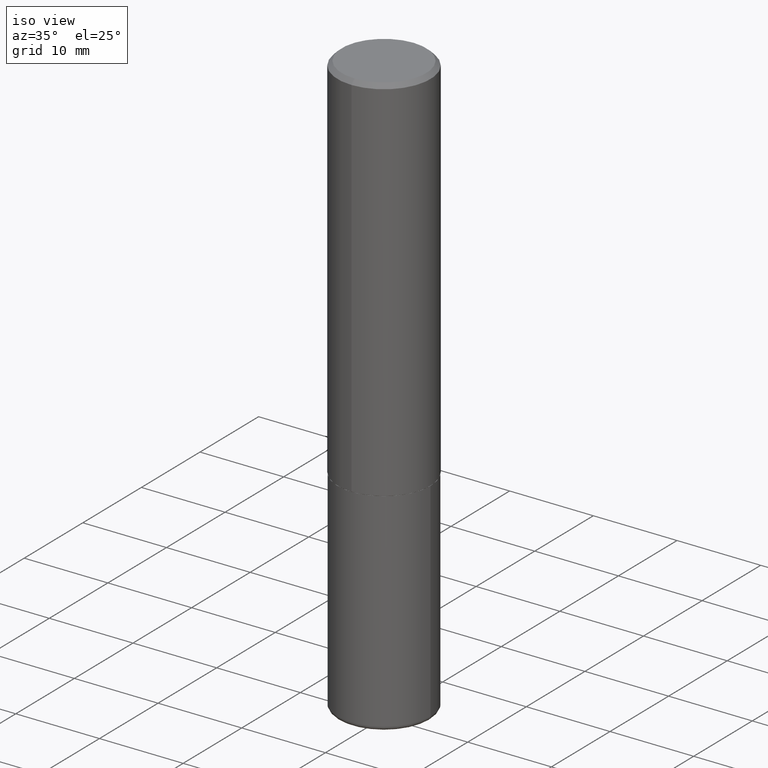
[diagram: clean part render]
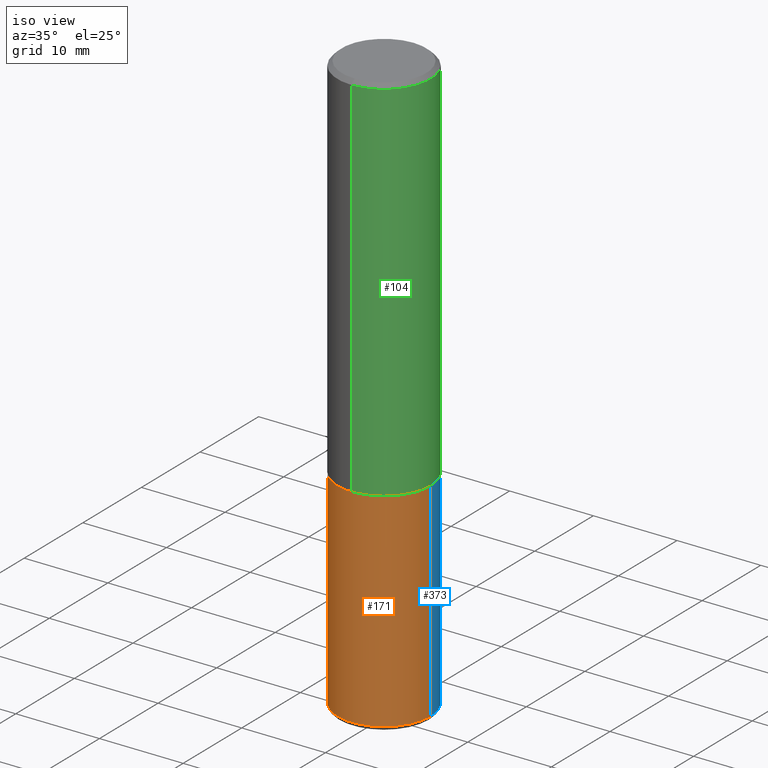
[diagram: same view with three faces highlighted in distinct colors, each labeled with its STEP entity id]
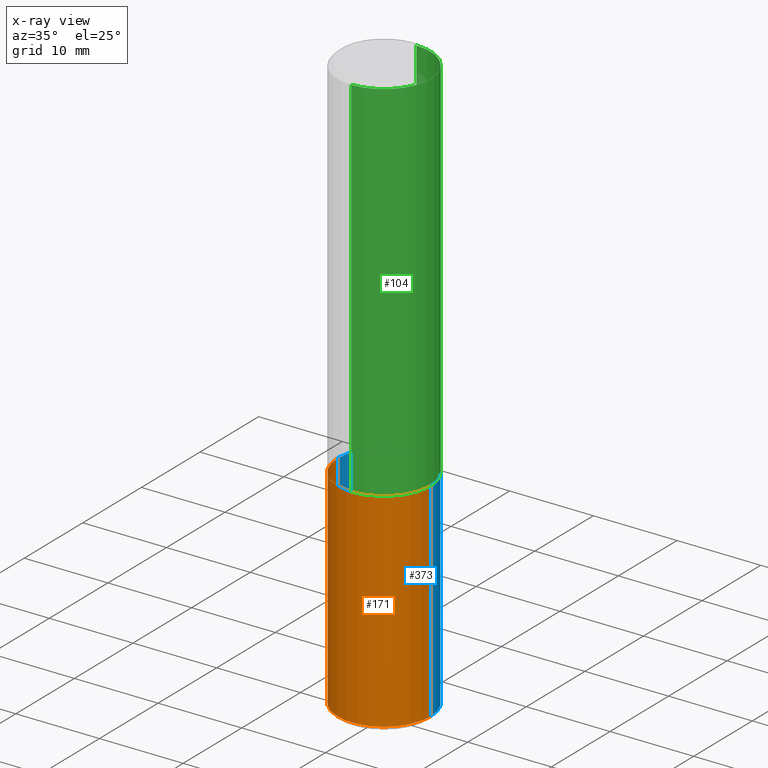
[diagram: x-ray of the same camera — body ghosted, the three highlighted faces saturated]
A machine part, iso view with three faces highlighted in distinct colors.
The next image is the same camera in x-ray (body ghosted, the three faces saturated) — at least one of them is partly hidden behind the body in this view.
Their STEP definitions:

[orange] entity #171 — the highlighted cylindrical surface (partial cylindrical patch) has radius 5.5562 mm, axis along (-0, 0, 1).
#7 = CARTESIAN_POINT ( 'NONE',  ( 4.279570410823988484E-29, -6.110092342975504671E-15, -1.750000000000000000 ) ) ;
#21 = EDGE_CURVE ( 'NONE', #239, #180, #110, .T. ) ;
#31 = DIRECTION ( 'NONE',  ( -2.445468806185136877E-29, 3.491481338843145188E-15, 1.000000000000000000 ) ) ;
#35 = AXIS2_PLACEMENT_3D ( 'NONE', #7, #101, #187 ) ;
#71 = CARTESIAN_POINT ( 'NONE',  ( 0.2187500000000000000, -1.527523085743870843E-15, 1.066663669705360885E-29 ) ) ;
#88 = CIRCLE ( 'NONE', #281, 0.2187500000000000000 ) ;
#101 = DIRECTION ( 'NONE',  ( -2.445468806185136597E-29, 3.491481338843145583E-15, 1.000000000000000000 ) ) ;
#110 = LINE ( 'NONE', #205, #238 ) ;
#115 = VECTOR ( 'NONE', #31, 39.37007874015748143 ) ;
#136 = VERTEX_POINT ( 'NONE', #382 ) ;
#155 = LINE ( 'NONE', #71, #115 ) ;
#169 = VERTEX_POINT ( 'NONE', #248 ) ;
#171 = ADVANCED_FACE ( 'NONE', ( #217 ), #346, .T. ) ;
#180 = VERTEX_POINT ( 'NONE', #385 ) ;
#184 = DIRECTION ( 'NONE',  ( 1.000000000000000000, -6.982962677686266711E-15, 4.876176775795935232E-29 ) ) ;
#187 = DIRECTION ( 'NONE',  ( 1.000000000000000000, -6.982962677686267499E-15, 0.000000000000000000 ) ) ;
#205 = CARTESIAN_POINT ( 'NONE',  ( -0.2187500000000000000, 1.554312234475219157E-15, -1.076017050993260622E-29 ) ) ;
#211 = DIRECTION ( 'NONE',  ( -2.445468806185136877E-29, 3.491481338843145188E-15, 1.000000000000000000 ) ) ;
#215 = EDGE_CURVE ( 'NONE', #180, #169, #378, .T. ) ;
#217 = FACE_OUTER_BOUND ( 'NONE', #263, .T. ) ;
#220 = EDGE_CURVE ( 'NONE', #136, #169, #155, .T. ) ;
#221 = CARTESIAN_POINT ( 'NONE',  ( -0.2187499999999999445, -7.977431820566568982E-15, -2.729999999999999982 ) ) ;
#238 = VECTOR ( 'NONE', #211, 39.37007874015748143 ) ;
#239 = VERTEX_POINT ( 'NONE', #221 ) ;
#248 = CARTESIAN_POINT ( 'NONE',  ( 0.2187500000000000000, -7.637615428719375514E-15, -1.750000000000000000 ) ) ;
#263 = EDGE_LOOP ( 'NONE', ( #308, #400, #332, #330 ) ) ;
#277 = EDGE_CURVE ( 'NONE', #239, #136, #88, .T. ) ;
#281 = AXIS2_PLACEMENT_3D ( 'NONE', #325, #329, #298 ) ;
#298 = DIRECTION ( 'NONE',  ( 1.000000000000000000, -6.982962677686262766E-15, 0.000000000000000000 ) ) ;
#308 = ORIENTED_EDGE ( 'NONE', *, *, #21, .F. ) ;
#316 = DIRECTION ( 'NONE',  ( -2.445468806185136597E-29, 3.491481338843145583E-15, 1.000000000000000000 ) ) ;
#325 = CARTESIAN_POINT ( 'NONE',  ( 6.676129840885423672E-29, -9.531744055041786561E-15, -2.729999999999999982 ) ) ;
#329 = DIRECTION ( 'NONE',  ( -2.445468806185136597E-29, 3.491481338843145583E-15, 1.000000000000000000 ) ) ;
#330 = ORIENTED_EDGE ( 'NONE', *, *, #215, .F. ) ;
#332 = ORIENTED_EDGE ( 'NONE', *, *, #220, .T. ) ;
#346 = CYLINDRICAL_SURFACE ( 'NONE', #388, 0.2187500000000000000 ) ;
#378 = CIRCLE ( 'NONE', #35, 0.2187500000000000000 ) ;
#382 = CARTESIAN_POINT ( 'NONE',  ( 0.2187499999999999445, -1.105926714078565662E-14, -2.729999999999999982 ) ) ;
#385 = CARTESIAN_POINT ( 'NONE',  ( -0.2187500000000000000, -6.266605964533427643E-15, -1.750000000000000000 ) ) ;
#388 = AXIS2_PLACEMENT_3D ( 'NONE', #414, #316, #184 ) ;
#400 = ORIENTED_EDGE ( 'NONE', *, *, #277, .T. ) ;
#414 = CARTESIAN_POINT ( 'NONE',  ( 0.000000000000000000, 0.000000000000000000, 0.000000000000000000 ) ) ;

[blue] entity #373 — the highlighted cylindrical surface (partial cylindrical patch) has radius 5.5562 mm, axis along (-0, 0, 1).
#21 = EDGE_CURVE ( 'NONE', #239, #180, #110, .T. ) ;
#30 = AXIS2_PLACEMENT_3D ( 'NONE', #51, #113, #138 ) ;
#31 = DIRECTION ( 'NONE',  ( -2.445468806185136877E-29, 3.491481338843145188E-15, 1.000000000000000000 ) ) ;
#51 = CARTESIAN_POINT ( 'NONE',  ( 0.000000000000000000, 0.000000000000000000, 0.000000000000000000 ) ) ;
#63 = CIRCLE ( 'NONE', #84, 0.2187500000000000000 ) ;
#71 = CARTESIAN_POINT ( 'NONE',  ( 0.2187500000000000000, -1.527523085743870843E-15, 1.066663669705360885E-29 ) ) ;
#75 = DIRECTION ( 'NONE',  ( -2.445468806185136597E-29, 3.491481338843145583E-15, 1.000000000000000000 ) ) ;
#81 = FACE_OUTER_BOUND ( 'NONE', #296, .T. ) ;
#84 = AXIS2_PLACEMENT_3D ( 'NONE', #243, #287, #134 ) ;
#103 = CARTESIAN_POINT ( 'NONE',  ( 4.279570410823988484E-29, -6.110092342975504671E-15, -1.750000000000000000 ) ) ;
#107 = ORIENTED_EDGE ( 'NONE', *, *, #111, .T. ) ;
#110 = LINE ( 'NONE', #205, #238 ) ;
#111 = EDGE_CURVE ( 'NONE', #136, #239, #63, .T. ) ;
#113 = DIRECTION ( 'NONE',  ( -2.445468806185136597E-29, 3.491481338843145583E-15, 1.000000000000000000 ) ) ;
#115 = VECTOR ( 'NONE', #31, 39.37007874015748143 ) ;
#134 = DIRECTION ( 'NONE',  ( 1.000000000000000000, -6.982962677686262766E-15, 0.000000000000000000 ) ) ;
#136 = VERTEX_POINT ( 'NONE', #382 ) ;
#138 = DIRECTION ( 'NONE',  ( 1.000000000000000000, -6.982962677686266711E-15, 4.876176775795935232E-29 ) ) ;
#155 = LINE ( 'NONE', #71, #115 ) ;
#169 = VERTEX_POINT ( 'NONE', #248 ) ;
#180 = VERTEX_POINT ( 'NONE', #385 ) ;
#198 = CYLINDRICAL_SURFACE ( 'NONE', #30, 0.2187500000000000000 ) ;
#205 = CARTESIAN_POINT ( 'NONE',  ( -0.2187500000000000000, 1.554312234475219157E-15, -1.076017050993260622E-29 ) ) ;
#211 = DIRECTION ( 'NONE',  ( -2.445468806185136877E-29, 3.491481338843145188E-15, 1.000000000000000000 ) ) ;
#220 = EDGE_CURVE ( 'NONE', #136, #169, #155, .T. ) ;
#221 = CARTESIAN_POINT ( 'NONE',  ( -0.2187499999999999445, -7.977431820566568982E-15, -2.729999999999999982 ) ) ;
#235 = ORIENTED_EDGE ( 'NONE', *, *, #333, .F. ) ;
#238 = VECTOR ( 'NONE', #211, 39.37007874015748143 ) ;
#239 = VERTEX_POINT ( 'NONE', #221 ) ;
#243 = CARTESIAN_POINT ( 'NONE',  ( 6.676129840885423672E-29, -9.531744055041786561E-15, -2.729999999999999982 ) ) ;
#248 = CARTESIAN_POINT ( 'NONE',  ( 0.2187500000000000000, -7.637615428719375514E-15, -1.750000000000000000 ) ) ;
#287 = DIRECTION ( 'NONE',  ( -2.445468806185136597E-29, 3.491481338843145583E-15, 1.000000000000000000 ) ) ;
#289 = AXIS2_PLACEMENT_3D ( 'NONE', #103, #75, #365 ) ;
#296 = EDGE_LOOP ( 'NONE', ( #107, #338, #235, #361 ) ) ;
#333 = EDGE_CURVE ( 'NONE', #169, #180, #418, .T. ) ;
#338 = ORIENTED_EDGE ( 'NONE', *, *, #21, .T. ) ;
#361 = ORIENTED_EDGE ( 'NONE', *, *, #220, .F. ) ;
#365 = DIRECTION ( 'NONE',  ( 1.000000000000000000, -6.982962677686267499E-15, 0.000000000000000000 ) ) ;
#373 = ADVANCED_FACE ( 'NONE', ( #81 ), #198, .T. ) ;
#382 = CARTESIAN_POINT ( 'NONE',  ( 0.2187499999999999445, -1.105926714078565662E-14, -2.729999999999999982 ) ) ;
#385 = CARTESIAN_POINT ( 'NONE',  ( -0.2187500000000000000, -6.266605964533427643E-15, -1.750000000000000000 ) ) ;
#418 = CIRCLE ( 'NONE', #289, 0.2187500000000000000 ) ;

[green] entity #104 — the highlighted cylindrical surface (partial cylindrical patch) has radius 5.5563 mm, axis along (-0, 0, 1).
#11 = CARTESIAN_POINT ( 'NONE',  ( 1.527523085743871237E-15, 0.2187499999999999445, -0.02000000000000081574 ) ) ;
#22 = LINE ( 'NONE', #240, #297 ) ;
#39 = EDGE_CURVE ( 'NONE', #80, #271, #22, .T. ) ;
#40 = DIRECTION ( 'NONE',  ( -2.445702576359043151E-29, 3.491146566648739573E-15, 1.000000000000000000 ) ) ;
#43 = AXIS2_PLACEMENT_3D ( 'NONE', #379, #40, #417 ) ;
#53 = CIRCLE ( 'NONE', #265, 0.2187500000000000278 ) ;
#60 = DIRECTION ( 'NONE',  ( -2.445702576359043151E-29, 3.491146566648739573E-15, 1.000000000000000000 ) ) ;
#62 = DIRECTION ( 'NONE',  ( -2.445702576359043151E-29, 3.491146566648739573E-15, 1.000000000000000000 ) ) ;
#64 = VERTEX_POINT ( 'NONE', #268 ) ;
#65 = CARTESIAN_POINT ( 'NONE',  ( -1.527523085743829428E-15, -0.2187500000000063283, -1.748999999999999000 ) ) ;
#80 = VERTEX_POINT ( 'NONE', #145 ) ;
#83 = EDGE_CURVE ( 'NONE', #105, #64, #340, .T. ) ;
#104 = ADVANCED_FACE ( 'NONE', ( #412 ), #212, .T. ) ;
#105 = VERTEX_POINT ( 'NONE', #65 ) ;
#108 = DIRECTION ( 'NONE',  ( -6.982962677686265922E-15, -1.000000000000000000, 3.492862791899307676E-15 ) ) ;
#139 = AXIS2_PLACEMENT_3D ( 'NONE', #343, #266, #405 ) ;
#141 = EDGE_CURVE ( 'NONE', #105, #80, #352, .T. ) ;
#145 = CARTESIAN_POINT ( 'NONE',  ( 1.554312234475241639E-15, 0.2187499999999941158, -1.749000000000000554 ) ) ;
#173 = VECTOR ( 'NONE', #62, 39.37007874015748143 ) ;
#212 = CYLINDRICAL_SURFACE ( 'NONE', #139, 0.2187500000000001388 ) ;
#213 = ORIENTED_EDGE ( 'NONE', *, *, #141, .T. ) ;
#236 = EDGE_LOOP ( 'NONE', ( #213, #276, #331, #336 ) ) ;
#240 = CARTESIAN_POINT ( 'NONE',  ( 1.554312234475219748E-15, 0.2187500000000001388, -7.636883114544122006E-16 ) ) ;
#259 = CARTESIAN_POINT ( 'NONE',  ( 4.891405152718098913E-31, -6.982293133297496204E-17, -0.02000000000000005246 ) ) ;
#265 = AXIS2_PLACEMENT_3D ( 'NONE', #259, #399, #108 ) ;
#266 = DIRECTION ( 'NONE',  ( -2.445702576359043151E-29, 3.491146566648739573E-15, 1.000000000000000000 ) ) ;
#268 = CARTESIAN_POINT ( 'NONE',  ( -1.500733937012521938E-15, -0.2187500000000000833, -0.01999999999999928571 ) ) ;
#271 = VERTEX_POINT ( 'NONE', #11 ) ;
#276 = ORIENTED_EDGE ( 'NONE', *, *, #39, .T. ) ;
#297 = VECTOR ( 'NONE', #60, 39.37007874015748143 ) ;
#331 = ORIENTED_EDGE ( 'NONE', *, *, #383, .F. ) ;
#336 = ORIENTED_EDGE ( 'NONE', *, *, #83, .F. ) ;
#340 = LINE ( 'NONE', #374, #173 ) ;
#343 = CARTESIAN_POINT ( 'NONE',  ( 0.000000000000000000, 0.000000000000000000, 0.000000000000000000 ) ) ;
#352 = CIRCLE ( 'NONE', #43, 0.2187500000000002220 ) ;
#374 = CARTESIAN_POINT ( 'NONE',  ( -1.527523085743871435E-15, -0.2187500000000001388, 7.636883114544122006E-16 ) ) ;
#379 = CARTESIAN_POINT ( 'NONE',  ( 4.277533806051965886E-29, -6.106015345068644919E-15, -1.748999999999999888 ) ) ;
#383 = EDGE_CURVE ( 'NONE', #64, #271, #53, .T. ) ;
#399 = DIRECTION ( 'NONE',  ( -2.445702576359043151E-29, 3.491146566648739573E-15, 1.000000000000000000 ) ) ;
#405 = DIRECTION ( 'NONE',  ( -6.982962677686265133E-15, -1.000000000000000000, 3.491146566648739178E-15 ) ) ;
#412 = FACE_OUTER_BOUND ( 'NONE', #236, .T. ) ;
#417 = DIRECTION ( 'NONE',  ( -6.982962677686265922E-15, -1.000000000000000000, 3.746534391310985612E-15 ) ) ;